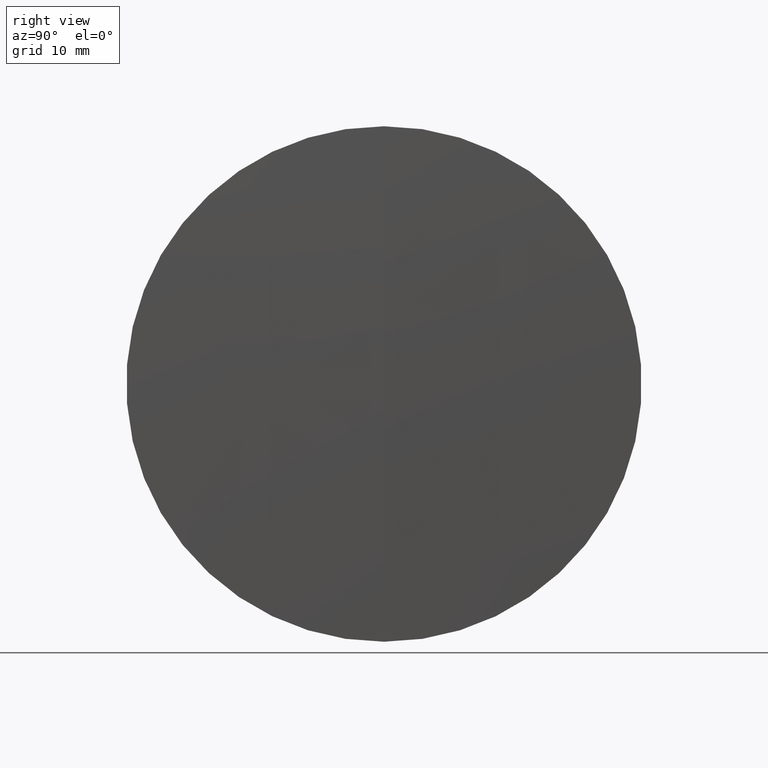
[diagram: clean part render]
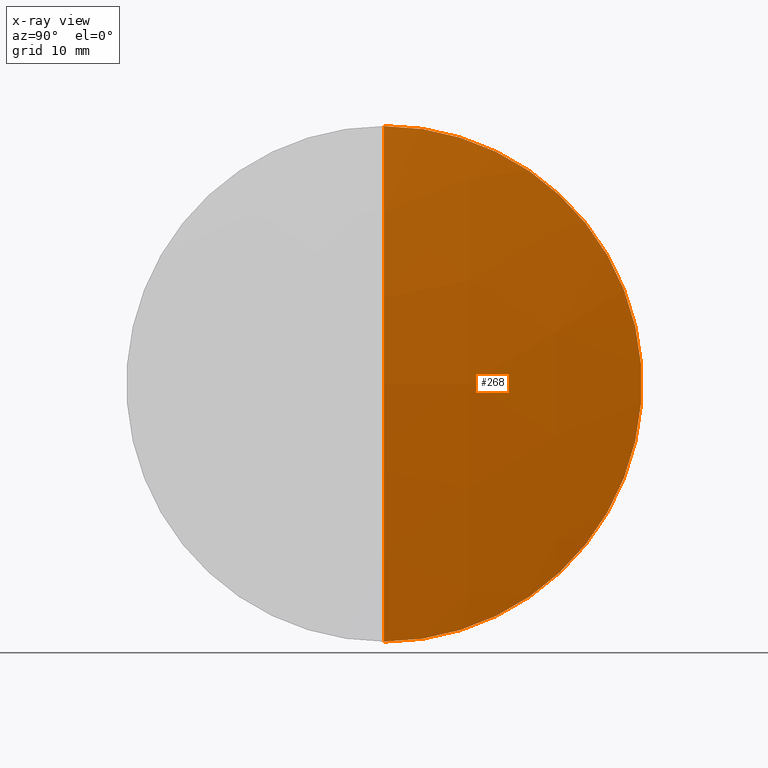
[diagram: x-ray — body ghosted, one internal face saturated and labeled with its STEP entity id]
A machine part, right view, then the same camera in x-ray: the body is ghosted and one INTERNAL B-rep face — a face not visible from any outside direction — is saturated and labeled: STEP entity #268.
In plain terms, the highlighted spherical surface has radius 186.8 mm.
Its self-contained STEP definition (entity closure, byte-faithful):
#7 = DIRECTION ( 'NONE',  ( 0.0000000000000000000, 0.0000000000000000000, 1.000000000000000000 ) ) ;
#8 = DIRECTION ( 'NONE',  ( 0.0000000000000000000, 0.0000000000000000000, 1.000000000000000000 ) ) ;
#16 = VERTEX_POINT ( 'NONE', #125 ) ;
#24 = CIRCLE ( 'NONE', #232, 186.7999999999999500 ) ;
#57 = CARTESIAN_POINT ( 'NONE',  ( 257.6217824430913800, 0.0000000000000000000, 2.168404344971008900E-016 ) ) ;
#63 = VERTEX_POINT ( 'NONE', #176 ) ;
#80 = AXIS2_PLACEMENT_3D ( 'NONE', #57, #245, #7 ) ;
#94 = EDGE_LOOP ( 'NONE', ( #316, #175, #296 ) ) ;
#98 = CIRCLE ( 'NONE', #275, 186.7999999999999500 ) ;
#106 = DIRECTION ( 'NONE',  ( -1.000000000000000000, -0.0000000000000000000, -0.0000000000000000000 ) ) ;
#116 = VERTEX_POINT ( 'NONE', #127 ) ;
#125 = CARTESIAN_POINT ( 'NONE',  ( 444.4217824430913300, 0.0000000000000000000, 1.165504153853337900E-014 ) ) ;
#127 = CARTESIAN_POINT ( 'NONE',  ( 442.6868520807731200, 3.110602869834276900E-015, -25.39999999999999900 ) ) ;
#158 = CIRCLE ( 'NONE', #314, 25.39999999999999500 ) ;
#175 = ORIENTED_EDGE ( 'NONE', *, *, #263, .T. ) ;
#176 = CARTESIAN_POINT ( 'NONE',  ( 442.6868520807731200, 0.0000000000000000000, 25.39999999999999500 ) ) ;
#177 = EDGE_CURVE ( 'NONE', #16, #63, #98, .T. ) ;
#180 = FACE_OUTER_BOUND ( 'NONE', #94, .T. ) ;
#187 = DIRECTION ( 'NONE',  ( 0.0000000000000000000, -1.224646799147353500E-016, 1.000000000000000000 ) ) ;
#188 = DIRECTION ( 'NONE',  ( -0.0000000000000000000, 1.000000000000000000, 1.224646799147353200E-016 ) ) ;
#210 = DIRECTION ( 'NONE',  ( 0.0000000000000000000, -1.000000000000000000, 0.0000000000000000000 ) ) ;
#218 = CARTESIAN_POINT ( 'NONE',  ( 442.6868520807731200, 0.0000000000000000000, 0.0000000000000000000 ) ) ;
#229 = EDGE_CURVE ( 'NONE', #63, #116, #158, .T. ) ;
#232 = AXIS2_PLACEMENT_3D ( 'NONE', #335, #188, #187 ) ;
#245 = DIRECTION ( 'NONE',  ( 0.0000000000000000000, 1.000000000000000000, 0.0000000000000000000 ) ) ;
#263 = EDGE_CURVE ( 'NONE', #16, #116, #24, .T. ) ;
#268 = ADVANCED_FACE ( 'NONE', ( #180 ), #315, .T. ) ;
#275 = AXIS2_PLACEMENT_3D ( 'NONE', #326, #210, #300 ) ;
#296 = ORIENTED_EDGE ( 'NONE', *, *, #229, .F. ) ;
#300 = DIRECTION ( 'NONE',  ( 0.0000000000000000000, 0.0000000000000000000, -1.000000000000000000 ) ) ;
#314 = AXIS2_PLACEMENT_3D ( 'NONE', #218, #106, #8 ) ;
#315 = SPHERICAL_SURFACE ( 'NONE', #80, 186.7999999999999500 ) ;
#316 = ORIENTED_EDGE ( 'NONE', *, *, #177, .F. ) ;
#326 = CARTESIAN_POINT ( 'NONE',  ( 257.6217824430913800, 0.0000000000000000000, 2.168404344971008900E-016 ) ) ;
#335 = CARTESIAN_POINT ( 'NONE',  ( 257.6217824430913800, 0.0000000000000000000, 2.168404344971008900E-016 ) ) ;